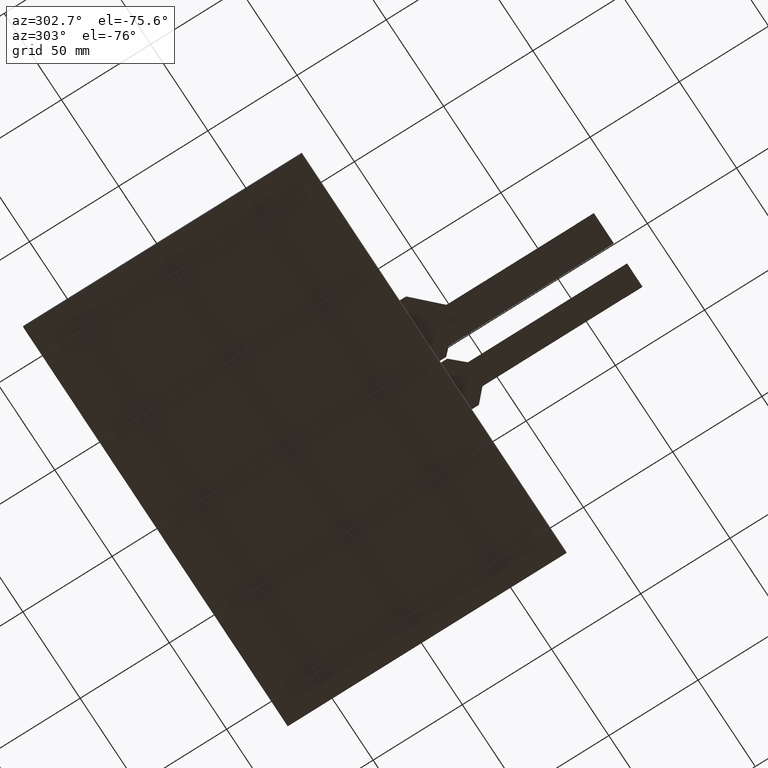
[diagram: clean part render]
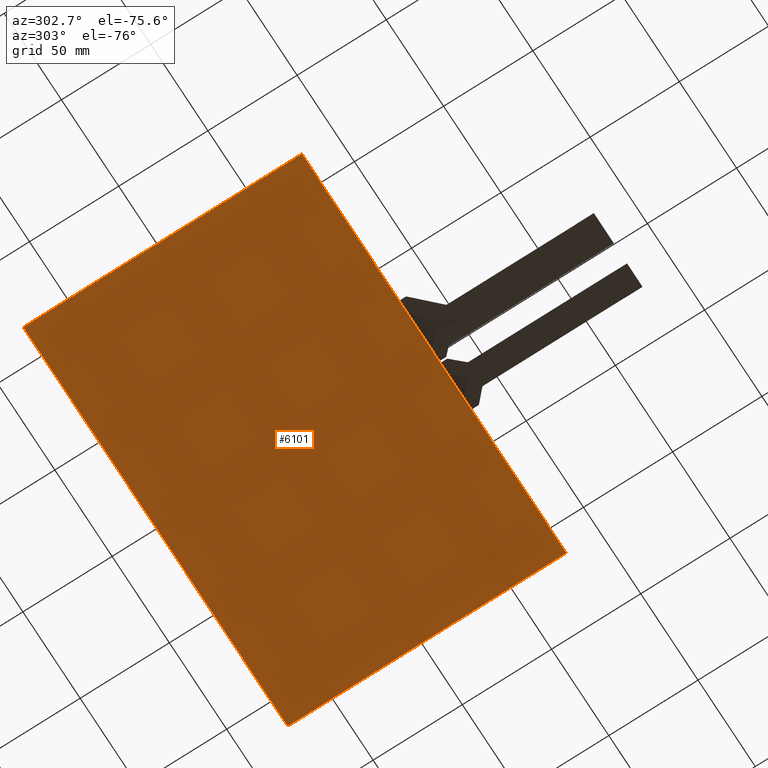
[diagram: same view with one face highlighted and labeled with its STEP entity id]
A machine part, auxiliary view. The second image highlights one B-rep face of the part: STEP entity #6101.
In plain terms, the highlighted planar face has unit normal (0, 0, -1).
Its self-contained STEP definition (entity closure, byte-faithful):
#331=PLANE('',#6439);
#625=FACE_OUTER_BOUND('',#923,.T.);
#923=EDGE_LOOP('',(#5792,#5793,#5794,#5795));
#1757=LINE('',#9639,#2597);
#1759=LINE('',#9643,#2599);
#1761=LINE('',#9647,#2601);
#1763=LINE('',#9650,#2603);
#2597=VECTOR('',#7901,10.);
#2599=VECTOR('',#7905,10.);
#2601=VECTOR('',#7909,10.);
#2603=VECTOR('',#7913,10.);
#3200=VERTEX_POINT('',#9636);
#3201=VERTEX_POINT('',#9638);
#3202=VERTEX_POINT('',#9642);
#3203=VERTEX_POINT('',#9646);
#4061=EDGE_CURVE('',#3201,#3200,#1757,.T.);
#4063=EDGE_CURVE('',#3202,#3201,#1759,.T.);
#4065=EDGE_CURVE('',#3203,#3202,#1761,.T.);
#4067=EDGE_CURVE('',#3200,#3203,#1763,.T.);
#5792=ORIENTED_EDGE('',*,*,#4067,.T.);
#5793=ORIENTED_EDGE('',*,*,#4065,.T.);
#5794=ORIENTED_EDGE('',*,*,#4063,.T.);
#5795=ORIENTED_EDGE('',*,*,#4061,.T.);
#6101=ADVANCED_FACE('',(#625),#331,.T.);
#6439=AXIS2_PLACEMENT_3D('',#9652,#7916,#7917);
#7901=DIRECTION('',(-2.27446458309891E-16,1.,0.));
#7905=DIRECTION('',(-1.,-1.53797128952403E-16,0.));
#7909=DIRECTION('',(0.,-1.,0.));
#7913=DIRECTION('',(1.,0.,0.));
#7916=DIRECTION('center_axis',(0.,0.,-1.));
#7917=DIRECTION('ref_axis',(-1.,0.,0.));
#9636=CARTESIAN_POINT('',(-115.5,75.7000000000001,-2.1));
#9638=CARTESIAN_POINT('',(-115.5,-80.5,-2.1));
#9639=CARTESIAN_POINT('',(-115.5,75.7000000000001,-2.1));
#9642=CARTESIAN_POINT('',(115.5,-80.4999999999999,-2.1));
#9643=CARTESIAN_POINT('',(-115.5,-80.5,-2.1));
#9646=CARTESIAN_POINT('',(115.5,75.7000000000001,-2.1));
#9647=CARTESIAN_POINT('',(115.5,-80.4999999999999,-2.1));
#9650=CARTESIAN_POINT('',(115.5,75.7000000000001,-2.1));
#9652=CARTESIAN_POINT('Origin',(-1.77635683940025E-14,-2.39999999999996,
-2.1));